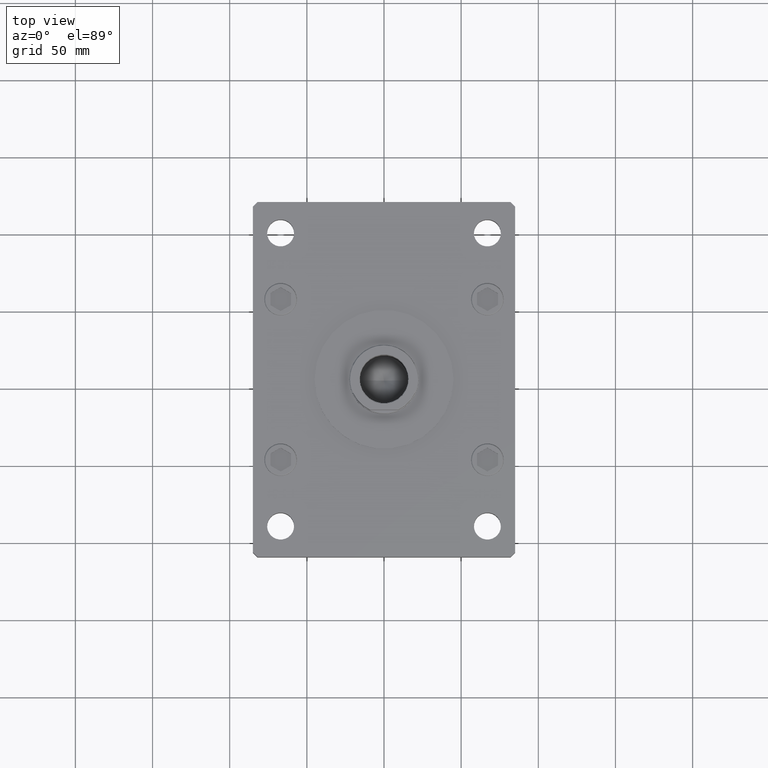
[diagram: clean part render]
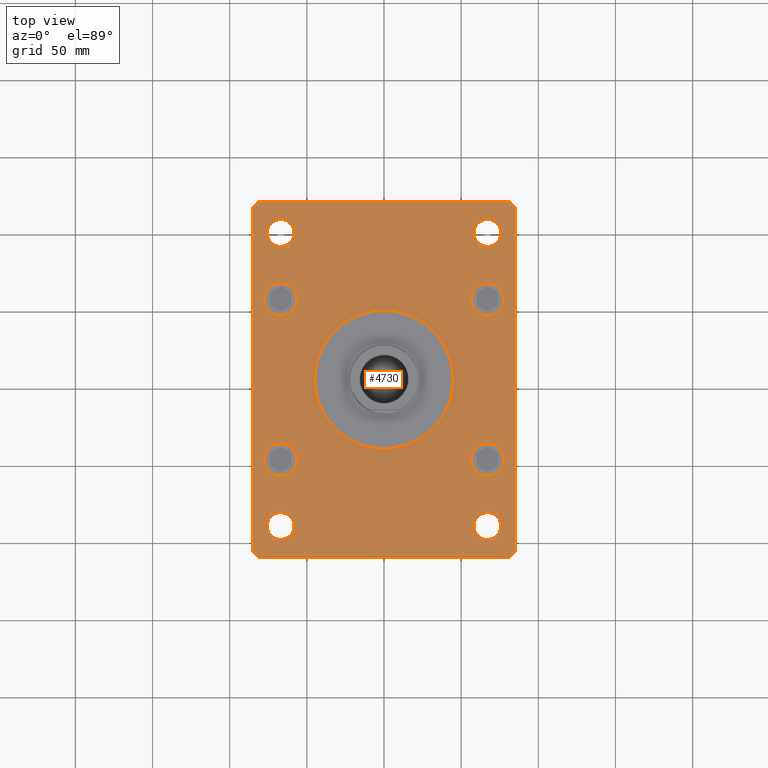
[diagram: same view with one face highlighted and labeled with its STEP entity id]
A machine part, top view. The second image highlights one B-rep face of the part: STEP entity #4730.
In plain terms, the highlighted planar face has unit normal (0, 0, 1).
Its self-contained STEP definition (entity closure, byte-faithful):
#230 = CARTESIAN_POINT ( 'NONE',  ( 82.00000000000004263, 115.0000000000000284, 27.00000000000000000 ) ) ;
#245 = VERTEX_POINT ( 'NONE', #14633 ) ;
#656 = ORIENTED_EDGE ( 'NONE', *, *, #16263, .F. ) ;
#759 = AXIS2_PLACEMENT_3D ( 'NONE', #9181, #42460, #50045 ) ;
#941 = CIRCLE ( 'NONE', #30310, 8.750000000000007105 ) ;
#1070 = AXIS2_PLACEMENT_3D ( 'NONE', #21189, #20659, #4399 ) ;
#1109 = DIRECTION ( 'NONE',  ( -1.000000000000000000, -1.692413147294444984E-16, 0.000000000000000000 ) ) ;
#1224 = CARTESIAN_POINT ( 'NONE',  ( 0.000000000000000000, 0.000000000000000000, 27.00000000000000000 ) ) ;
#1569 = EDGE_CURVE ( 'NONE', #38776, #24545, #3694, .T. ) ;
#1749 = DIRECTION ( 'NONE',  ( 0.000000000000000000, 0.000000000000000000, 1.000000000000000000 ) ) ;
#1944 = DIRECTION ( 'NONE',  ( 0.7071067811865459074, 0.7071067811865491270, 0.000000000000000000 ) ) ;
#2154 = EDGE_CURVE ( 'NONE', #46490, #6332, #38993, .T. ) ;
#2182 = DIRECTION ( 'NONE',  ( 1.239088197126290570E-16, -1.000000000000000000, 0.000000000000000000 ) ) ;
#2394 = AXIS2_PLACEMENT_3D ( 'NONE', #29335, #45861, #29601 ) ;
#2611 = CARTESIAN_POINT ( 'NONE',  ( 85.00000000000001421, -111.9999999999999005, 27.00000000000000000 ) ) ;
#2857 = EDGE_CURVE ( 'NONE', #23935, #14204, #38328, .T. ) ;
#2910 = CIRCLE ( 'NONE', #8113, 45.00000000000000711 ) ;
#2949 = CARTESIAN_POINT ( 'NONE',  ( 85.00000000000001421, 112.0000000000000142, 27.00000000000000000 ) ) ;
#3202 = VERTEX_POINT ( 'NONE', #23610 ) ;
#3375 = DIRECTION ( 'NONE',  ( 1.000000000000000000, 0.000000000000000000, 0.000000000000000000 ) ) ;
#3553 = DIRECTION ( 'NONE',  ( 0.000000000000000000, 0.000000000000000000, 1.000000000000000000 ) ) ;
#3554 = EDGE_LOOP ( 'NONE', ( #50213, #44828, #29831, #42789, #48559, #39002, #46457, #15000 ) ) ;
#3569 = EDGE_CURVE ( 'NONE', #21811, #39738, #8918, .T. ) ;
#3641 = CARTESIAN_POINT ( 'NONE',  ( -67.00000000000000000, 52.00000000000001421, 27.00000000000000000 ) ) ;
#3694 = CIRCLE ( 'NONE', #19280, 10.50000000000000178 ) ;
#3883 = CARTESIAN_POINT ( 'NONE',  ( 75.74999999999998579, -95.00000000000001421, 27.00000000000000000 ) ) ;
#4219 = AXIS2_PLACEMENT_3D ( 'NONE', #18430, #14355, #30849 ) ;
#4399 = DIRECTION ( 'NONE',  ( 1.000000000000000000, 0.000000000000000000, 0.000000000000000000 ) ) ;
#4457 = CIRCLE ( 'NONE', #34734, 10.50000000000000178 ) ;
#4730 = ADVANCED_FACE ( 'NONE', ( #50767, #9892, #42374, #38846, #5011, #26389, #18290, #33980, #34787, #51300 ), #45904, .T. ) ;
#4954 = AXIS2_PLACEMENT_3D ( 'NONE', #11940, #3553, #20078 ) ;
#5011 = FACE_BOUND ( 'NONE', #34249, .T. ) ;
#5073 = DIRECTION ( 'NONE',  ( 1.000000000000000000, 0.000000000000000000, 0.000000000000000000 ) ) ;
#5279 = DIRECTION ( 'NONE',  ( 0.000000000000000000, 0.000000000000000000, 1.000000000000000000 ) ) ;
#5315 = DIRECTION ( 'NONE',  ( 0.000000000000000000, 0.000000000000000000, 1.000000000000000000 ) ) ;
#5449 = LINE ( 'NONE', #5984, #11802 ) ;
#5558 = DIRECTION ( 'NONE',  ( 1.000000000000000000, 0.000000000000000000, 0.000000000000000000 ) ) ;
#5984 = CARTESIAN_POINT ( 'NONE',  ( -85.00000000000001421, 112.0000000000000000, 27.00000000000000000 ) ) ;
#6332 = VERTEX_POINT ( 'NONE', #44660 ) ;
#6633 = ORIENTED_EDGE ( 'NONE', *, *, #32893, .F. ) ;
#6686 = CARTESIAN_POINT ( 'NONE',  ( -77.50000000000000000, 52.00000000000001421, 27.00000000000000000 ) ) ;
#6876 = ORIENTED_EDGE ( 'NONE', *, *, #14571, .F. ) ;
#8099 = DIRECTION ( 'NONE',  ( 1.000000000000000000, 0.000000000000000000, 0.000000000000000000 ) ) ;
#8113 = AXIS2_PLACEMENT_3D ( 'NONE', #41026, #40763, #31819 ) ;
#8815 = VECTOR ( 'NONE', #16978, 1000.000000000000000 ) ;
#8861 = CIRCLE ( 'NONE', #1070, 8.750000000000007105 ) ;
#8918 = CIRCLE ( 'NONE', #29654, 10.49999999999999467 ) ;
#9181 = CARTESIAN_POINT ( 'NONE',  ( 67.00000000000000000, 94.99999999999997158, 27.00000000000000000 ) ) ;
#9290 = EDGE_CURVE ( 'NONE', #45379, #29593, #41148, .T. ) ;
#9332 = CIRCLE ( 'NONE', #2394, 45.00000000000000711 ) ;
#9363 = DIRECTION ( 'NONE',  ( 1.000000000000000000, 6.769652589177783879E-16, 0.000000000000000000 ) ) ;
#9892 = FACE_BOUND ( 'NONE', #11275, .T. ) ;
#10554 = VECTOR ( 'NONE', #39447, 1000.000000000000000 ) ;
#11188 = CARTESIAN_POINT ( 'NONE',  ( -58.24999999999997158, -95.00000000000001421, 27.00000000000000000 ) ) ;
#11275 = EDGE_LOOP ( 'NONE', ( #18218, #26715 ) ) ;
#11311 = CARTESIAN_POINT ( 'NONE',  ( -67.00000000000000000, -52.00000000000000000, 27.00000000000000000 ) ) ;
#11802 = VECTOR ( 'NONE', #2182, 1000.000000000000000 ) ;
#11910 = CARTESIAN_POINT ( 'NONE',  ( -58.24999999999999289, 95.00000000000001421, 27.00000000000000000 ) ) ;
#11940 = CARTESIAN_POINT ( 'NONE',  ( 67.00000000000001421, -52.00000000000000000, 27.00000000000000000 ) ) ;
#12031 = VERTEX_POINT ( 'NONE', #21030 ) ;
#12061 = ORIENTED_EDGE ( 'NONE', *, *, #21378, .F. ) ;
#12117 = DIRECTION ( 'NONE',  ( 0.000000000000000000, 0.000000000000000000, 1.000000000000000000 ) ) ;
#12317 = CARTESIAN_POINT ( 'NONE',  ( 77.50000000000001421, 52.00000000000000000, 27.00000000000000000 ) ) ;
#12424 = EDGE_CURVE ( 'NONE', #6332, #45379, #5449, .T. ) ;
#12706 = EDGE_LOOP ( 'NONE', ( #47573, #50525 ) ) ;
#12886 = CARTESIAN_POINT ( 'NONE',  ( 75.75000000000001421, 94.99999999999997158, 27.00000000000000000 ) ) ;
#13418 = DIRECTION ( 'NONE',  ( 1.000000000000000000, 0.000000000000000000, -0.000000000000000000 ) ) ;
#13878 = CARTESIAN_POINT ( 'NONE',  ( 82.00000000000002842, -114.9999999999999147, 27.00000000000000000 ) ) ;
#14204 = VERTEX_POINT ( 'NONE', #6686 ) ;
#14355 = DIRECTION ( 'NONE',  ( 0.000000000000000000, 0.000000000000000000, 1.000000000000000000 ) ) ;
#14571 = EDGE_CURVE ( 'NONE', #12031, #43420, #20547, .T. ) ;
#14633 = CARTESIAN_POINT ( 'NONE',  ( -75.75000000000001421, 95.00000000000001421, 27.00000000000000000 ) ) ;
#15000 = ORIENTED_EDGE ( 'NONE', *, *, #9290, .T. ) ;
#15085 = ORIENTED_EDGE ( 'NONE', *, *, #24060, .F. ) ;
#15763 = EDGE_LOOP ( 'NONE', ( #656, #37760 ) ) ;
#15823 = EDGE_LOOP ( 'NONE', ( #52635, #21695 ) ) ;
#16263 = EDGE_CURVE ( 'NONE', #35556, #35793, #9332, .T. ) ;
#16786 = CARTESIAN_POINT ( 'NONE',  ( -84.99999999999998579, -112.0000000000000142, 27.00000000000000000 ) ) ;
#16978 = DIRECTION ( 'NONE',  ( -0.7071067811865426878, 0.7071067811865524577, 0.000000000000000000 ) ) ;
#17498 = DIRECTION ( 'NONE',  ( 0.000000000000000000, 0.000000000000000000, 1.000000000000000000 ) ) ;
#17689 = LINE ( 'NONE', #13878, #23600 ) ;
#17761 = DIRECTION ( 'NONE',  ( 0.000000000000000000, 0.000000000000000000, 1.000000000000000000 ) ) ;
#18218 = ORIENTED_EDGE ( 'NONE', *, *, #45200, .F. ) ;
#18290 = FACE_BOUND ( 'NONE', #41302, .T. ) ;
#18320 = DIRECTION ( 'NONE',  ( 1.000000000000000000, 0.000000000000000000, 0.000000000000000000 ) ) ;
#18430 = CARTESIAN_POINT ( 'NONE',  ( 66.99999999999997158, -95.00000000000001421, 27.00000000000000000 ) ) ;
#18453 = CARTESIAN_POINT ( 'NONE',  ( 82.00000000000004263, 115.0000000000000284, 27.00000000000000000 ) ) ;
#18702 = EDGE_CURVE ( 'NONE', #30782, #51381, #24114, .T. ) ;
#18945 = CARTESIAN_POINT ( 'NONE',  ( 58.24999999999996447, -95.00000000000001421, 27.00000000000000000 ) ) ;
#19006 = EDGE_CURVE ( 'NONE', #49147, #245, #20653, .T. ) ;
#19280 = AXIS2_PLACEMENT_3D ( 'NONE', #11311, #12117, #52732 ) ;
#19630 = VERTEX_POINT ( 'NONE', #230 ) ;
#19635 = CARTESIAN_POINT ( 'NONE',  ( -56.50000000000000000, -52.00000000000000000, 27.00000000000000000 ) ) ;
#19873 = CARTESIAN_POINT ( 'NONE',  ( 85.00000000000001421, -111.9999999999999005, 27.00000000000000000 ) ) ;
#20078 = DIRECTION ( 'NONE',  ( 1.000000000000000000, 0.000000000000000000, 0.000000000000000000 ) ) ;
#20547 = CIRCLE ( 'NONE', #4954, 10.49999999999999467 ) ;
#20653 = CIRCLE ( 'NONE', #42291, 8.750000000000007105 ) ;
#20659 = DIRECTION ( 'NONE',  ( 0.000000000000000000, 0.000000000000000000, 1.000000000000000000 ) ) ;
#21030 = CARTESIAN_POINT ( 'NONE',  ( 56.50000000000002132, -52.00000000000000000, 27.00000000000000000 ) ) ;
#21189 = CARTESIAN_POINT ( 'NONE',  ( -66.99999999999997158, -95.00000000000001421, 27.00000000000000000 ) ) ;
#21234 = AXIS2_PLACEMENT_3D ( 'NONE', #1224, #5279, #13418 ) ;
#21378 = EDGE_CURVE ( 'NONE', #43420, #12031, #50900, .T. ) ;
#21612 = VERTEX_POINT ( 'NONE', #2949 ) ;
#21683 = EDGE_CURVE ( 'NONE', #39738, #21811, #47426, .T. ) ;
#21695 = ORIENTED_EDGE ( 'NONE', *, *, #21683, .F. ) ;
#21811 = VERTEX_POINT ( 'NONE', #37843 ) ;
#22165 = EDGE_CURVE ( 'NONE', #29593, #3202, #29650, .T. ) ;
#22848 = VERTEX_POINT ( 'NONE', #12886 ) ;
#23600 = VECTOR ( 'NONE', #1944, 1000.000000000000114 ) ;
#23610 = CARTESIAN_POINT ( 'NONE',  ( 82.00000000000002842, -114.9999999999999147, 27.00000000000000000 ) ) ;
#23677 = DIRECTION ( 'NONE',  ( 0.000000000000000000, 0.000000000000000000, 1.000000000000000000 ) ) ;
#23935 = VERTEX_POINT ( 'NONE', #28123 ) ;
#24060 = EDGE_CURVE ( 'NONE', #22848, #30758, #24110, .T. ) ;
#24110 = CIRCLE ( 'NONE', #759, 8.750000000000007105 ) ;
#24114 = CIRCLE ( 'NONE', #4219, 8.750000000000007105 ) ;
#24545 = VERTEX_POINT ( 'NONE', #19635 ) ;
#24595 = CARTESIAN_POINT ( 'NONE',  ( 67.00000000000001421, 52.00000000000000000, 27.00000000000000000 ) ) ;
#25135 = DIRECTION ( 'NONE',  ( 1.000000000000000000, 0.000000000000000000, 0.000000000000000000 ) ) ;
#25575 = CARTESIAN_POINT ( 'NONE',  ( -67.00000000000000000, 95.00000000000001421, 27.00000000000000000 ) ) ;
#25881 = CARTESIAN_POINT ( 'NONE',  ( 66.99999999999997158, -95.00000000000001421, 27.00000000000000000 ) ) ;
#26184 = EDGE_CURVE ( 'NONE', #24545, #38776, #26809, .T. ) ;
#26317 = CARTESIAN_POINT ( 'NONE',  ( 45.00000000000000711, 5.510910596163090344E-15, 27.00000000000000000 ) ) ;
#26389 = FACE_OUTER_BOUND ( 'NONE', #3554, .T. ) ;
#26715 = ORIENTED_EDGE ( 'NONE', *, *, #2857, .F. ) ;
#26806 = LINE ( 'NONE', #18453, #52868 ) ;
#26809 = CIRCLE ( 'NONE', #38069, 10.50000000000000178 ) ;
#27263 = ORIENTED_EDGE ( 'NONE', *, *, #42530, .F. ) ;
#28123 = CARTESIAN_POINT ( 'NONE',  ( -56.50000000000000000, 52.00000000000001421, 27.00000000000000000 ) ) ;
#28862 = DIRECTION ( 'NONE',  ( 1.000000000000000000, 0.000000000000000000, 0.000000000000000000 ) ) ;
#29335 = CARTESIAN_POINT ( 'NONE',  ( 0.000000000000000000, 0.000000000000000000, 27.00000000000000000 ) ) ;
#29593 = VERTEX_POINT ( 'NONE', #50156 ) ;
#29601 = DIRECTION ( 'NONE',  ( 1.000000000000000000, 0.000000000000000000, 0.000000000000000000 ) ) ;
#29650 = LINE ( 'NONE', #41842, #38811 ) ;
#29654 = AXIS2_PLACEMENT_3D ( 'NONE', #29944, #46205, #38075 ) ;
#29831 = ORIENTED_EDGE ( 'NONE', *, *, #31056, .T. ) ;
#29944 = CARTESIAN_POINT ( 'NONE',  ( 67.00000000000001421, 52.00000000000000000, 27.00000000000000000 ) ) ;
#30310 = AXIS2_PLACEMENT_3D ( 'NONE', #39119, #17761, #5558 ) ;
#30360 = EDGE_CURVE ( 'NONE', #245, #49147, #45951, .T. ) ;
#30465 = VECTOR ( 'NONE', #46582, 1000.000000000000114 ) ;
#30758 = VERTEX_POINT ( 'NONE', #35983 ) ;
#30782 = VERTEX_POINT ( 'NONE', #18945 ) ;
#30849 = DIRECTION ( 'NONE',  ( 1.000000000000000000, 0.000000000000000000, 0.000000000000000000 ) ) ;
#30954 = CARTESIAN_POINT ( 'NONE',  ( -82.00000000000002842, 115.0000000000000000, 27.00000000000000000 ) ) ;
#31025 = CARTESIAN_POINT ( 'NONE',  ( -67.00000000000000000, -52.00000000000000000, 27.00000000000000000 ) ) ;
#31056 = EDGE_CURVE ( 'NONE', #33596, #21612, #39706, .T. ) ;
#31684 = EDGE_CURVE ( 'NONE', #21612, #19630, #34024, .T. ) ;
#31812 = CARTESIAN_POINT ( 'NONE',  ( -84.99999999999998579, -112.0000000000000142, 27.00000000000000000 ) ) ;
#31819 = DIRECTION ( 'NONE',  ( 1.000000000000000000, 0.000000000000000000, 0.000000000000000000 ) ) ;
#32391 = ORIENTED_EDGE ( 'NONE', *, *, #30360, .F. ) ;
#32893 = EDGE_CURVE ( 'NONE', #44573, #45614, #8861, .T. ) ;
#33596 = VERTEX_POINT ( 'NONE', #19873 ) ;
#33682 = CIRCLE ( 'NONE', #52703, 8.750000000000007105 ) ;
#33980 = FACE_BOUND ( 'NONE', #12706, .T. ) ;
#34024 = LINE ( 'NONE', #50545, #8815 ) ;
#34042 = DIRECTION ( 'NONE',  ( 0.000000000000000000, 0.000000000000000000, 1.000000000000000000 ) ) ;
#34249 = EDGE_LOOP ( 'NONE', ( #6633, #42829 ) ) ;
#34734 = AXIS2_PLACEMENT_3D ( 'NONE', #40602, #41654, #25135 ) ;
#34787 = FACE_BOUND ( 'NONE', #15823, .T. ) ;
#34848 = AXIS2_PLACEMENT_3D ( 'NONE', #3641, #23677, #3375 ) ;
#35316 = CARTESIAN_POINT ( 'NONE',  ( 67.00000000000001421, -52.00000000000000000, 27.00000000000000000 ) ) ;
#35556 = VERTEX_POINT ( 'NONE', #47290 ) ;
#35788 = EDGE_CURVE ( 'NONE', #3202, #33596, #17689, .T. ) ;
#35793 = VERTEX_POINT ( 'NONE', #26317 ) ;
#35983 = CARTESIAN_POINT ( 'NONE',  ( 58.24999999999998579, 94.99999999999997158, 27.00000000000000000 ) ) ;
#37012 = DIRECTION ( 'NONE',  ( 0.000000000000000000, 0.000000000000000000, 1.000000000000000000 ) ) ;
#37057 = AXIS2_PLACEMENT_3D ( 'NONE', #35316, #1749, #39115 ) ;
#37342 = DIRECTION ( 'NONE',  ( 0.7071067811865474617, -0.7071067811865474617, 0.000000000000000000 ) ) ;
#37760 = ORIENTED_EDGE ( 'NONE', *, *, #50640, .F. ) ;
#37843 = CARTESIAN_POINT ( 'NONE',  ( 56.50000000000002132, 52.00000000000000000, 27.00000000000000000 ) ) ;
#37976 = EDGE_LOOP ( 'NONE', ( #32391, #50110 ) ) ;
#38069 = AXIS2_PLACEMENT_3D ( 'NONE', #31025, #34042, #5073 ) ;
#38075 = DIRECTION ( 'NONE',  ( 1.000000000000000000, 0.000000000000000000, 0.000000000000000000 ) ) ;
#38328 = CIRCLE ( 'NONE', #34848, 10.50000000000000178 ) ;
#38539 = EDGE_CURVE ( 'NONE', #51381, #30782, #33682, .T. ) ;
#38776 = VERTEX_POINT ( 'NONE', #44750 ) ;
#38811 = VECTOR ( 'NONE', #9363, 1000.000000000000000 ) ;
#38846 = FACE_BOUND ( 'NONE', #37976, .T. ) ;
#38876 = CARTESIAN_POINT ( 'NONE',  ( -66.99999999999997158, -95.00000000000001421, 27.00000000000000000 ) ) ;
#38993 = LINE ( 'NONE', #43049, #30465 ) ;
#39002 = ORIENTED_EDGE ( 'NONE', *, *, #2154, .T. ) ;
#39115 = DIRECTION ( 'NONE',  ( 1.000000000000000000, 0.000000000000000000, 0.000000000000000000 ) ) ;
#39119 = CARTESIAN_POINT ( 'NONE',  ( 67.00000000000000000, 94.99999999999997158, 27.00000000000000000 ) ) ;
#39447 = DIRECTION ( 'NONE',  ( 0.000000000000000000, 1.000000000000000000, 0.000000000000000000 ) ) ;
#39706 = LINE ( 'NONE', #2611, #10554 ) ;
#39738 = VERTEX_POINT ( 'NONE', #12317 ) ;
#40602 = CARTESIAN_POINT ( 'NONE',  ( -67.00000000000000000, 52.00000000000001421, 27.00000000000000000 ) ) ;
#40763 = DIRECTION ( 'NONE',  ( 0.000000000000000000, 0.000000000000000000, 1.000000000000000000 ) ) ;
#41026 = CARTESIAN_POINT ( 'NONE',  ( 0.000000000000000000, 0.000000000000000000, 27.00000000000000000 ) ) ;
#41118 = DIRECTION ( 'NONE',  ( 0.000000000000000000, 0.000000000000000000, 1.000000000000000000 ) ) ;
#41148 = LINE ( 'NONE', #16786, #48908 ) ;
#41302 = EDGE_LOOP ( 'NONE', ( #27263, #15085 ) ) ;
#41379 = AXIS2_PLACEMENT_3D ( 'NONE', #24595, #41118, #8099 ) ;
#41551 = DIRECTION ( 'NONE',  ( 1.000000000000000000, 0.000000000000000000, 0.000000000000000000 ) ) ;
#41654 = DIRECTION ( 'NONE',  ( 0.000000000000000000, 0.000000000000000000, 1.000000000000000000 ) ) ;
#41788 = CARTESIAN_POINT ( 'NONE',  ( -75.74999999999998579, -95.00000000000001421, 27.00000000000000000 ) ) ;
#41842 = CARTESIAN_POINT ( 'NONE',  ( -81.99999999999998579, -115.0000000000000142, 27.00000000000000000 ) ) ;
#42096 = DIRECTION ( 'NONE',  ( 0.000000000000000000, 0.000000000000000000, 1.000000000000000000 ) ) ;
#42110 = EDGE_LOOP ( 'NONE', ( #53377, #45304 ) ) ;
#42144 = DIRECTION ( 'NONE',  ( 1.000000000000000000, 0.000000000000000000, 0.000000000000000000 ) ) ;
#42291 = AXIS2_PLACEMENT_3D ( 'NONE', #49443, #17498, #28862 ) ;
#42374 = FACE_BOUND ( 'NONE', #51704, .T. ) ;
#42460 = DIRECTION ( 'NONE',  ( 0.000000000000000000, 0.000000000000000000, 1.000000000000000000 ) ) ;
#42530 = EDGE_CURVE ( 'NONE', #30758, #22848, #941, .T. ) ;
#42789 = ORIENTED_EDGE ( 'NONE', *, *, #31684, .T. ) ;
#42829 = ORIENTED_EDGE ( 'NONE', *, *, #48374, .F. ) ;
#43049 = CARTESIAN_POINT ( 'NONE',  ( -82.00000000000002842, 115.0000000000000000, 27.00000000000000000 ) ) ;
#43420 = VERTEX_POINT ( 'NONE', #47515 ) ;
#43464 = CIRCLE ( 'NONE', #51239, 8.750000000000007105 ) ;
#44573 = VERTEX_POINT ( 'NONE', #41788 ) ;
#44660 = CARTESIAN_POINT ( 'NONE',  ( -85.00000000000001421, 112.0000000000000000, 27.00000000000000000 ) ) ;
#44750 = CARTESIAN_POINT ( 'NONE',  ( -77.50000000000000000, -52.00000000000000000, 27.00000000000000000 ) ) ;
#44828 = ORIENTED_EDGE ( 'NONE', *, *, #35788, .T. ) ;
#44894 = EDGE_CURVE ( 'NONE', #19630, #46490, #26806, .T. ) ;
#45200 = EDGE_CURVE ( 'NONE', #14204, #23935, #4457, .T. ) ;
#45304 = ORIENTED_EDGE ( 'NONE', *, *, #38539, .F. ) ;
#45379 = VERTEX_POINT ( 'NONE', #31812 ) ;
#45614 = VERTEX_POINT ( 'NONE', #11188 ) ;
#45861 = DIRECTION ( 'NONE',  ( 0.000000000000000000, 0.000000000000000000, 1.000000000000000000 ) ) ;
#45904 = PLANE ( 'NONE',  #21234 ) ;
#45951 = CIRCLE ( 'NONE', #47691, 8.750000000000007105 ) ;
#46205 = DIRECTION ( 'NONE',  ( 0.000000000000000000, 0.000000000000000000, 1.000000000000000000 ) ) ;
#46457 = ORIENTED_EDGE ( 'NONE', *, *, #12424, .T. ) ;
#46490 = VERTEX_POINT ( 'NONE', #30954 ) ;
#46582 = DIRECTION ( 'NONE',  ( -0.7071067811865459074, -0.7071067811865491270, 0.000000000000000000 ) ) ;
#47290 = CARTESIAN_POINT ( 'NONE',  ( -45.00000000000000711, 0.000000000000000000, 27.00000000000000000 ) ) ;
#47426 = CIRCLE ( 'NONE', #41379, 10.49999999999999467 ) ;
#47515 = CARTESIAN_POINT ( 'NONE',  ( 77.50000000000001421, -52.00000000000000000, 27.00000000000000000 ) ) ;
#47573 = ORIENTED_EDGE ( 'NONE', *, *, #1569, .F. ) ;
#47691 = AXIS2_PLACEMENT_3D ( 'NONE', #25575, #42096, #41551 ) ;
#48374 = EDGE_CURVE ( 'NONE', #45614, #44573, #43464, .T. ) ;
#48559 = ORIENTED_EDGE ( 'NONE', *, *, #44894, .T. ) ;
#48908 = VECTOR ( 'NONE', #37342, 1000.000000000000114 ) ;
#49147 = VERTEX_POINT ( 'NONE', #11910 ) ;
#49443 = CARTESIAN_POINT ( 'NONE',  ( -67.00000000000000000, 95.00000000000001421, 27.00000000000000000 ) ) ;
#50045 = DIRECTION ( 'NONE',  ( 1.000000000000000000, 0.000000000000000000, 0.000000000000000000 ) ) ;
#50110 = ORIENTED_EDGE ( 'NONE', *, *, #19006, .F. ) ;
#50156 = CARTESIAN_POINT ( 'NONE',  ( -81.99999999999998579, -115.0000000000000142, 27.00000000000000000 ) ) ;
#50213 = ORIENTED_EDGE ( 'NONE', *, *, #22165, .T. ) ;
#50525 = ORIENTED_EDGE ( 'NONE', *, *, #26184, .F. ) ;
#50545 = CARTESIAN_POINT ( 'NONE',  ( 85.00000000000001421, 112.0000000000000142, 27.00000000000000000 ) ) ;
#50640 = EDGE_CURVE ( 'NONE', #35793, #35556, #2910, .T. ) ;
#50767 = FACE_BOUND ( 'NONE', #15763, .T. ) ;
#50900 = CIRCLE ( 'NONE', #37057, 10.49999999999999467 ) ;
#51239 = AXIS2_PLACEMENT_3D ( 'NONE', #38876, #5315, #18320 ) ;
#51300 = FACE_BOUND ( 'NONE', #42110, .T. ) ;
#51381 = VERTEX_POINT ( 'NONE', #3883 ) ;
#51704 = EDGE_LOOP ( 'NONE', ( #6876, #12061 ) ) ;
#52635 = ORIENTED_EDGE ( 'NONE', *, *, #3569, .F. ) ;
#52703 = AXIS2_PLACEMENT_3D ( 'NONE', #25881, #37012, #42144 ) ;
#52732 = DIRECTION ( 'NONE',  ( 1.000000000000000000, 0.000000000000000000, 0.000000000000000000 ) ) ;
#52868 = VECTOR ( 'NONE', #1109, 1000.000000000000000 ) ;
#53377 = ORIENTED_EDGE ( 'NONE', *, *, #18702, .F. ) ;